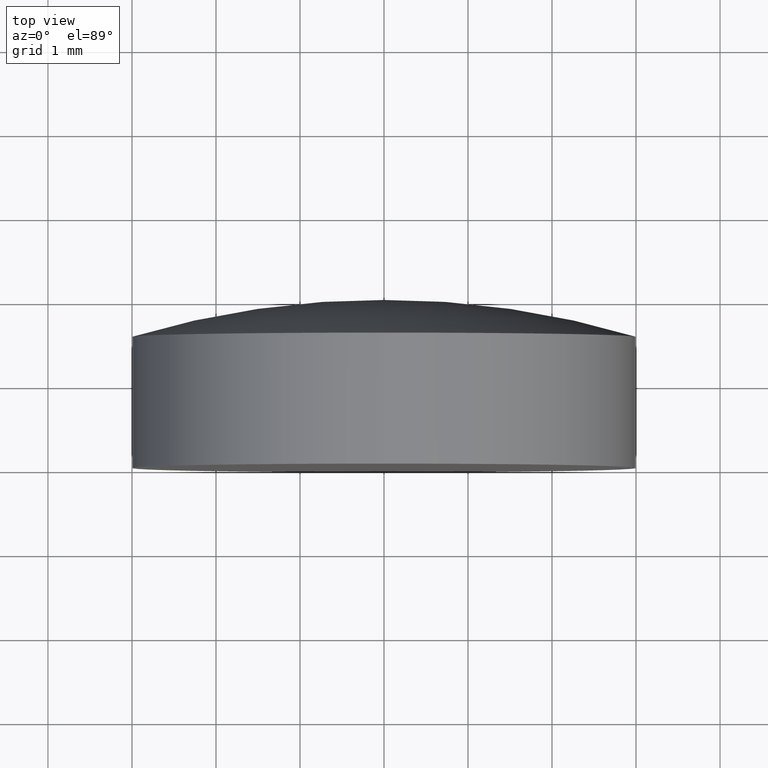
[diagram: clean part render]
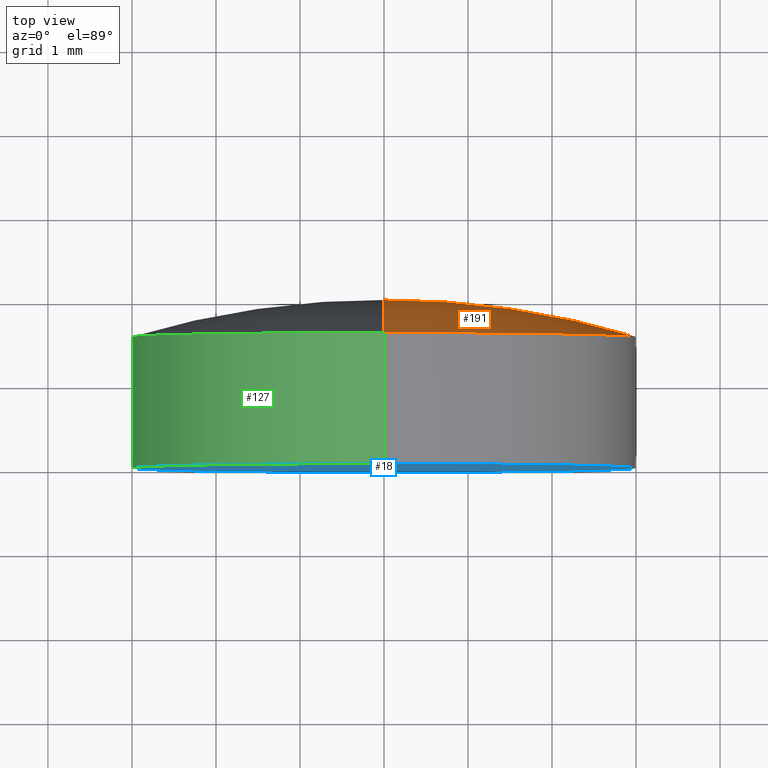
[diagram: same view with three faces highlighted in distinct colors, each labeled with its STEP entity id]
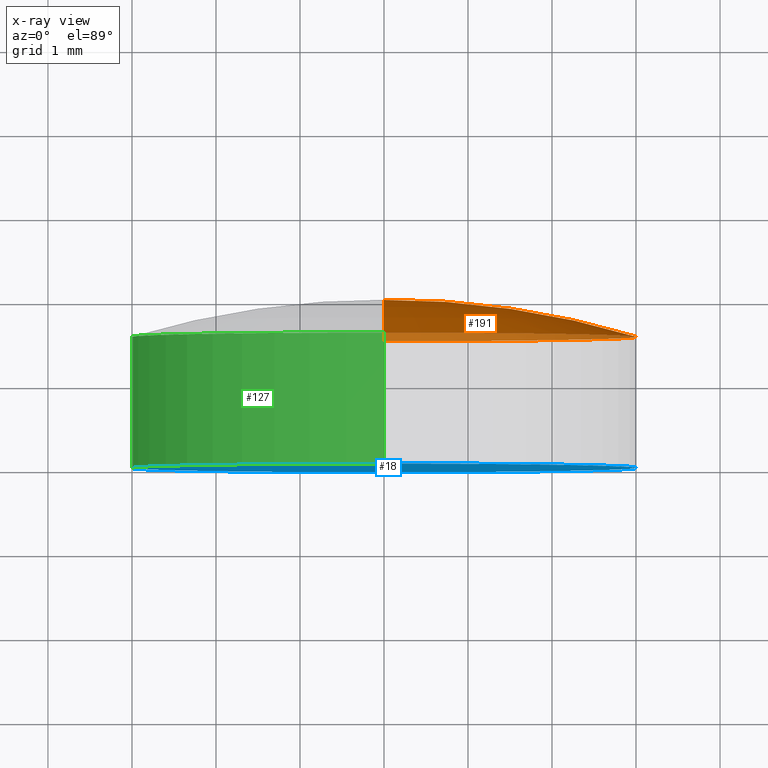
[diagram: x-ray of the same camera — body ghosted, the three highlighted faces saturated]
A machine part, top view with three faces highlighted in distinct colors.
The next image is the same camera in x-ray (body ghosted, the three faces saturated) — at least one of them is partly hidden behind the body in this view.
Their STEP definitions:

[orange] entity #191 — the highlighted toroidal blend (fillet) surface has major radius 0.0128 mm and minor (blend) radius 10.36 mm.
#2 = AXIS2_PLACEMENT_3D ( 'NONE', #20, #97, #160 ) ;
#7 = ORIENTED_EDGE ( 'NONE', *, *, #175, .T. ) ;
#20 = CARTESIAN_POINT ( 'NONE',  ( 0.000000000000000000, -8.359992091227860911, -0.01280115995324552884 ) ) ;
#37 = DIRECTION ( 'NONE',  ( -0.000000000000000000, -1.000000000000000000, -0.000000000000000000 ) ) ;
#44 = VERTEX_POINT ( 'NONE', #141 ) ;
#45 = CIRCLE ( 'NONE', #2, 10.35999999999999766 ) ;
#46 = TOROIDAL_SURFACE ( 'NONE', #151, 0.01280115995324552884, 10.35999999999999766 ) ;
#66 = CARTESIAN_POINT ( 'NONE',  ( 0.000000000000000000, 1.559999999999999609, 0.000000000000000000 ) ) ;
#72 = CIRCLE ( 'NONE', #109, 3.000000000000000000 ) ;
#79 = CARTESIAN_POINT ( 'NONE',  ( 0.000000000000000000, 1.559999999999999609, -3.000000000000000000 ) ) ;
#82 = CARTESIAN_POINT ( 'NONE',  ( 1.567689956211541805E-18, -8.359992091227860911, 0.01280115995324552884 ) ) ;
#84 = AXIS2_PLACEMENT_3D ( 'NONE', #82, #178, #177 ) ;
#94 = EDGE_CURVE ( 'NONE', #44, #135, #45, .T. ) ;
#97 = DIRECTION ( 'NONE',  ( -1.000000000000000000, 0.000000000000000000, 0.000000000000000000 ) ) ;
#104 = ORIENTED_EDGE ( 'NONE', *, *, #137, .F. ) ;
#109 = AXIS2_PLACEMENT_3D ( 'NONE', #66, #158, #165 ) ;
#112 = CARTESIAN_POINT ( 'NONE',  ( 3.673940397442059868E-16, 1.559999999999999609, 3.000000000000000000 ) ) ;
#115 = EDGE_LOOP ( 'NONE', ( #195, #7, #104 ) ) ;
#130 = CARTESIAN_POINT ( 'NONE',  ( 0.000000000000000000, -8.359992091227860911, 0.000000000000000000 ) ) ;
#131 = FACE_OUTER_BOUND ( 'NONE', #115, .T. ) ;
#135 = VERTEX_POINT ( 'NONE', #79 ) ;
#137 = EDGE_CURVE ( 'NONE', #135, #150, #72, .T. ) ;
#141 = CARTESIAN_POINT ( 'NONE',  ( 2.744386749103933099E-16, 2.000000000000000000, 0.000000000000000000 ) ) ;
#144 = CIRCLE ( 'NONE', #84, 10.35999999999999766 ) ;
#150 = VERTEX_POINT ( 'NONE', #112 ) ;
#151 = AXIS2_PLACEMENT_3D ( 'NONE', #130, #37, #192 ) ;
#158 = DIRECTION ( 'NONE',  ( -0.000000000000000000, -1.000000000000000000, -0.000000000000000000 ) ) ;
#160 = DIRECTION ( 'NONE',  ( 0.000000000000000000, 0.000000000000000000, 1.000000000000000000 ) ) ;
#165 = DIRECTION ( 'NONE',  ( 0.000000000000000000, 0.000000000000000000, -1.000000000000000000 ) ) ;
#175 = EDGE_CURVE ( 'NONE', #44, #150, #144, .T. ) ;
#177 = DIRECTION ( 'NONE',  ( -1.224646799147353207E-16, 0.000000000000000000, -1.000000000000000000 ) ) ;
#178 = DIRECTION ( 'NONE',  ( 1.000000000000000000, 0.000000000000000000, -1.224646799147353207E-16 ) ) ;
#191 = ADVANCED_FACE ( 'NONE', ( #131 ), #46, .T. ) ;
#192 = DIRECTION ( 'NONE',  ( 0.000000000000000000, 0.000000000000000000, -1.000000000000000000 ) ) ;
#195 = ORIENTED_EDGE ( 'NONE', *, *, #94, .F. ) ;

[blue] entity #18 — the highlighted planar face has unit normal (0, 1, 0).
#14 = DIRECTION ( 'NONE',  ( 0.000000000000000000, 1.000000000000000000, 0.000000000000000000 ) ) ;
#18 = ADVANCED_FACE ( 'NONE', ( #87 ), #40, .F. ) ;
#21 = CARTESIAN_POINT ( 'NONE',  ( 0.000000000000000000, 0.000000000000000000, 0.000000000000000000 ) ) ;
#28 = VERTEX_POINT ( 'NONE', #166 ) ;
#29 = AXIS2_PLACEMENT_3D ( 'NONE', #200, #58, #31 ) ;
#31 = DIRECTION ( 'NONE',  ( 0.000000000000000000, 0.000000000000000000, -1.000000000000000000 ) ) ;
#40 = PLANE ( 'NONE',  #64 ) ;
#48 = EDGE_CURVE ( 'NONE', #75, #28, #128, .T. ) ;
#49 = CIRCLE ( 'NONE', #159, 3.000000000000000000 ) ;
#58 = DIRECTION ( 'NONE',  ( -0.000000000000000000, -1.000000000000000000, -0.000000000000000000 ) ) ;
#64 = AXIS2_PLACEMENT_3D ( 'NONE', #164, #14, #198 ) ;
#75 = VERTEX_POINT ( 'NONE', #90 ) ;
#87 = FACE_OUTER_BOUND ( 'NONE', #147, .T. ) ;
#90 = CARTESIAN_POINT ( 'NONE',  ( 0.000000000000000000, 0.000000000000000000, -3.000000000000000000 ) ) ;
#119 = ORIENTED_EDGE ( 'NONE', *, *, #156, .T. ) ;
#128 = CIRCLE ( 'NONE', #29, 3.000000000000000000 ) ;
#147 = EDGE_LOOP ( 'NONE', ( #184, #119 ) ) ;
#156 = EDGE_CURVE ( 'NONE', #28, #75, #49, .T. ) ;
#159 = AXIS2_PLACEMENT_3D ( 'NONE', #21, #181, #179 ) ;
#164 = CARTESIAN_POINT ( 'NONE',  ( 0.000000000000000000, 0.000000000000000000, 0.000000000000000000 ) ) ;
#166 = CARTESIAN_POINT ( 'NONE',  ( 3.673940397442059868E-16, 0.000000000000000000, 3.000000000000000000 ) ) ;
#179 = DIRECTION ( 'NONE',  ( 0.000000000000000000, 0.000000000000000000, -1.000000000000000000 ) ) ;
#181 = DIRECTION ( 'NONE',  ( -0.000000000000000000, -1.000000000000000000, -0.000000000000000000 ) ) ;
#184 = ORIENTED_EDGE ( 'NONE', *, *, #48, .T. ) ;
#198 = DIRECTION ( 'NONE',  ( 0.000000000000000000, -0.000000000000000000, 1.000000000000000000 ) ) ;
#200 = CARTESIAN_POINT ( 'NONE',  ( 0.000000000000000000, 0.000000000000000000, 0.000000000000000000 ) ) ;

[green] entity #127 — the highlighted cylindrical surface (partial cylindrical patch) has radius 3 mm, axis along (-0, -1, -0).
#5 = EDGE_CURVE ( 'NONE', #150, #135, #12, .T. ) ;
#6 = CYLINDRICAL_SURFACE ( 'NONE', #139, 3.000000000000000000 ) ;
#12 = CIRCLE ( 'NONE', #111, 3.000000000000000000 ) ;
#21 = CARTESIAN_POINT ( 'NONE',  ( 0.000000000000000000, 0.000000000000000000, 0.000000000000000000 ) ) ;
#22 = CARTESIAN_POINT ( 'NONE',  ( 0.000000000000000000, 0.000000000000000000, 0.000000000000000000 ) ) ;
#23 = DIRECTION ( 'NONE',  ( -0.000000000000000000, -1.000000000000000000, -0.000000000000000000 ) ) ;
#25 = EDGE_CURVE ( 'NONE', #150, #28, #138, .T. ) ;
#28 = VERTEX_POINT ( 'NONE', #166 ) ;
#35 = VECTOR ( 'NONE', #56, 1000.000000000000000 ) ;
#39 = DIRECTION ( 'NONE',  ( -0.000000000000000000, -1.000000000000000000, -0.000000000000000000 ) ) ;
#49 = CIRCLE ( 'NONE', #159, 3.000000000000000000 ) ;
#56 = DIRECTION ( 'NONE',  ( -0.000000000000000000, -1.000000000000000000, -0.000000000000000000 ) ) ;
#67 = DIRECTION ( 'NONE',  ( 0.000000000000000000, 0.000000000000000000, -1.000000000000000000 ) ) ;
#70 = ORIENTED_EDGE ( 'NONE', *, *, #80, .T. ) ;
#71 = ORIENTED_EDGE ( 'NONE', *, *, #25, .F. ) ;
#75 = VERTEX_POINT ( 'NONE', #90 ) ;
#79 = CARTESIAN_POINT ( 'NONE',  ( 0.000000000000000000, 1.559999999999999609, -3.000000000000000000 ) ) ;
#80 = EDGE_CURVE ( 'NONE', #135, #75, #122, .T. ) ;
#81 = FACE_OUTER_BOUND ( 'NONE', #149, .T. ) ;
#83 = CARTESIAN_POINT ( 'NONE',  ( 0.000000000000000000, 1.559999999999999609, 0.000000000000000000 ) ) ;
#88 = VECTOR ( 'NONE', #23, 1000.000000000000000 ) ;
#90 = CARTESIAN_POINT ( 'NONE',  ( 0.000000000000000000, 0.000000000000000000, -3.000000000000000000 ) ) ;
#95 = DIRECTION ( 'NONE',  ( -0.000000000000000000, -1.000000000000000000, -0.000000000000000000 ) ) ;
#111 = AXIS2_PLACEMENT_3D ( 'NONE', #83, #39, #182 ) ;
#112 = CARTESIAN_POINT ( 'NONE',  ( 3.673940397442059868E-16, 1.559999999999999609, 3.000000000000000000 ) ) ;
#122 = LINE ( 'NONE', #154, #35 ) ;
#127 = ADVANCED_FACE ( 'NONE', ( #81 ), #6, .T. ) ;
#135 = VERTEX_POINT ( 'NONE', #79 ) ;
#138 = LINE ( 'NONE', #153, #88 ) ;
#139 = AXIS2_PLACEMENT_3D ( 'NONE', #22, #95, #67 ) ;
#149 = EDGE_LOOP ( 'NONE', ( #71, #201, #70, #186 ) ) ;
#150 = VERTEX_POINT ( 'NONE', #112 ) ;
#153 = CARTESIAN_POINT ( 'NONE',  ( 3.673940397442059868E-16, 0.000000000000000000, 3.000000000000000000 ) ) ;
#154 = CARTESIAN_POINT ( 'NONE',  ( 0.000000000000000000, 0.000000000000000000, -3.000000000000000000 ) ) ;
#156 = EDGE_CURVE ( 'NONE', #28, #75, #49, .T. ) ;
#159 = AXIS2_PLACEMENT_3D ( 'NONE', #21, #181, #179 ) ;
#166 = CARTESIAN_POINT ( 'NONE',  ( 3.673940397442059868E-16, 0.000000000000000000, 3.000000000000000000 ) ) ;
#179 = DIRECTION ( 'NONE',  ( 0.000000000000000000, 0.000000000000000000, -1.000000000000000000 ) ) ;
#181 = DIRECTION ( 'NONE',  ( -0.000000000000000000, -1.000000000000000000, -0.000000000000000000 ) ) ;
#182 = DIRECTION ( 'NONE',  ( 0.000000000000000000, 0.000000000000000000, -1.000000000000000000 ) ) ;
#186 = ORIENTED_EDGE ( 'NONE', *, *, #156, .F. ) ;
#201 = ORIENTED_EDGE ( 'NONE', *, *, #5, .T. ) ;